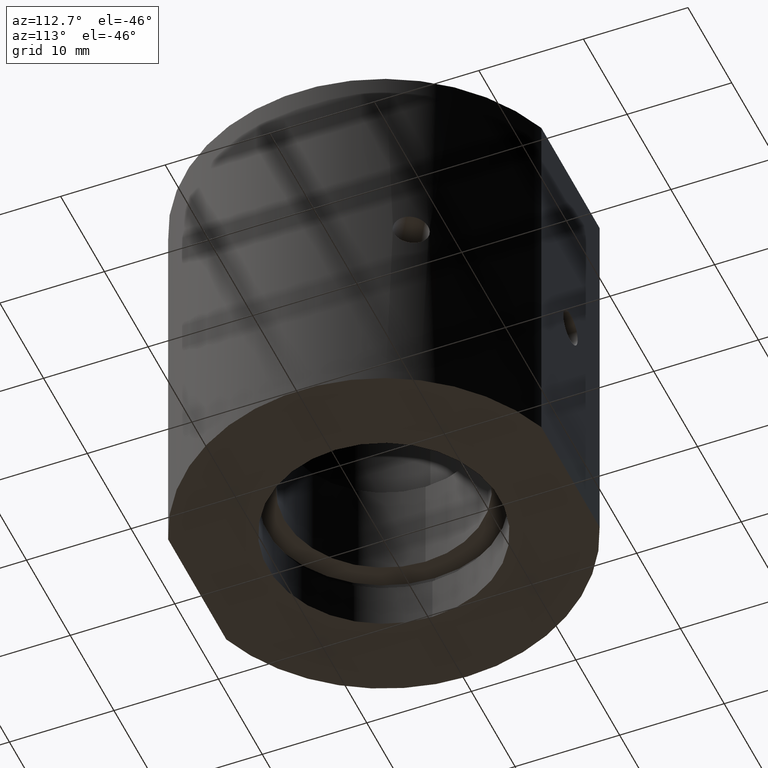
[diagram: clean part render]
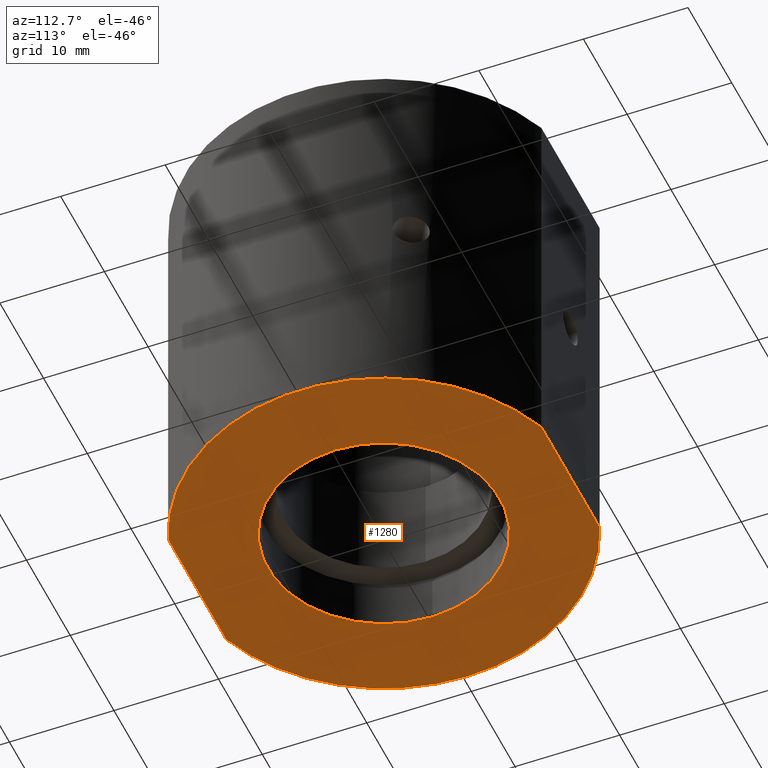
[diagram: same view with one face highlighted and labeled with its STEP entity id]
A machine part, auxiliary view. The second image highlights one B-rep face of the part: STEP entity #1280.
In plain terms, the highlighted planar face has unit normal (0, 0, 1).
Its self-contained STEP definition (entity closure, byte-faithful):
#18 = VERTEX_POINT ( 'NONE', #1069 ) ;
#46 = EDGE_CURVE ( 'NONE', #872, #330, #1139, .T. ) ;
#61 = DIRECTION ( 'NONE',  ( -1.224646799147350500E-016, -0.0000000000000000000, -1.000000000000000000 ) ) ;
#62 = AXIS2_PLACEMENT_3D ( 'NONE', #815, #1367, #250 ) ;
#73 = CIRCLE ( 'NONE', #1171, 11.10000000000000000 ) ;
#80 = ORIENTED_EDGE ( 'NONE', *, *, #1227, .T. ) ;
#95 = ORIENTED_EDGE ( 'NONE', *, *, #494, .T. ) ;
#96 = ORIENTED_EDGE ( 'NONE', *, *, #146, .T. ) ;
#102 = CARTESIAN_POINT ( 'NONE',  ( 1.584578833305349700E-015, 0.0000000000000000000, -19.00000000000000400 ) ) ;
#113 = CARTESIAN_POINT ( 'NONE',  ( 6.654321903845652000, -17.85000000000000100, -19.00000000000000400 ) ) ;
#133 = CARTESIAN_POINT ( 'NONE',  ( 11.10000000000000100, 1.359357947053562200E-015, -19.00000000000000400 ) ) ;
#146 = EDGE_CURVE ( 'NONE', #18, #872, #1018, .T. ) ;
#224 = DIRECTION ( 'NONE',  ( -1.000000000000000000, -0.0000000000000000000, 1.224646799147350500E-016 ) ) ;
#250 = DIRECTION ( 'NONE',  ( -1.000000000000000000, 0.0000000000000000000, 0.0000000000000000000 ) ) ;
#264 = PLANE ( 'NONE',  #1284 ) ;
#312 = FACE_OUTER_BOUND ( 'NONE', #603, .T. ) ;
#314 = ORIENTED_EDGE ( 'NONE', *, *, #730, .T. ) ;
#330 = VERTEX_POINT ( 'NONE', #1071 ) ;
#398 = CARTESIAN_POINT ( 'NONE',  ( 11.10000000000000100, 17.85000000000000100, -19.00000000000000400 ) ) ;
#423 = DIRECTION ( 'NONE',  ( -1.224646799147350500E-016, -0.0000000000000000000, -1.000000000000000000 ) ) ;
#427 = ORIENTED_EDGE ( 'NONE', *, *, #991, .F. ) ;
#454 = CARTESIAN_POINT ( 'NONE',  ( -6.654321903845648500, 17.85000000000000100, -19.00000000000000400 ) ) ;
#494 = EDGE_CURVE ( 'NONE', #1363, #1115, #1149, .T. ) ;
#497 = ORIENTED_EDGE ( 'NONE', *, *, #46, .T. ) ;
#514 = AXIS2_PLACEMENT_3D ( 'NONE', #1152, #714, #917 ) ;
#517 = EDGE_LOOP ( 'NONE', ( #871, #427 ) ) ;
#529 = VECTOR ( 'NONE', #224, 1000.000000000000000 ) ;
#567 = EDGE_CURVE ( 'NONE', #1097, #1192, #595, .T. ) ;
#584 = AXIS2_PLACEMENT_3D ( 'NONE', #1409, #846, #628 ) ;
#595 = CIRCLE ( 'NONE', #62, 11.10000000000000000 ) ;
#603 = EDGE_LOOP ( 'NONE', ( #80, #95, #314, #96, #497 ) ) ;
#628 = DIRECTION ( 'NONE',  ( -1.000000000000000000, 0.0000000000000000000, 1.821231995776175500E-016 ) ) ;
#714 = DIRECTION ( 'NONE',  ( -1.224646799147350500E-016, -0.0000000000000000000, -1.000000000000000000 ) ) ;
#719 = DIRECTION ( 'NONE',  ( 1.224646799147350500E-016, 0.0000000000000000000, 1.000000000000000000 ) ) ;
#730 = EDGE_CURVE ( 'NONE', #1115, #18, #1289, .T. ) ;
#815 = CARTESIAN_POINT ( 'NONE',  ( 1.584578833305349700E-015, 0.0000000000000000000, -19.00000000000000400 ) ) ;
#843 = DIRECTION ( 'NONE',  ( 1.000000000000000000, 0.0000000000000000000, -1.224646799147350500E-016 ) ) ;
#844 = CARTESIAN_POINT ( 'NONE',  ( 1.584578833305349700E-015, 0.0000000000000000000, -19.00000000000000400 ) ) ;
#846 = DIRECTION ( 'NONE',  ( -1.224646799147350500E-016, -0.0000000000000000000, -1.000000000000000000 ) ) ;
#871 = ORIENTED_EDGE ( 'NONE', *, *, #567, .F. ) ;
#872 = VERTEX_POINT ( 'NONE', #454 ) ;
#917 = DIRECTION ( 'NONE',  ( -1.000000000000000000, 0.0000000000000000000, 1.821231995776175500E-016 ) ) ;
#939 = DIRECTION ( 'NONE',  ( 1.000000000000000000, 0.0000000000000000000, -1.224646799147350500E-016 ) ) ;
#947 = DIRECTION ( 'NONE',  ( -1.000000000000000000, 0.0000000000000000000, 1.821231995776175500E-016 ) ) ;
#952 = VECTOR ( 'NONE', #843, 1000.000000000000000 ) ;
#962 = FACE_BOUND ( 'NONE', #517, .T. ) ;
#991 = EDGE_CURVE ( 'NONE', #1192, #1097, #73, .T. ) ;
#1018 = CIRCLE ( 'NONE', #1101, 19.05000000000000100 ) ;
#1053 = CARTESIAN_POINT ( 'NONE',  ( 11.10000000000000100, 0.0000000000000000000, -19.00000000000000400 ) ) ;
#1069 = CARTESIAN_POINT ( 'NONE',  ( -19.05000000000000100, 0.0000000000000000000, -19.00000000000000000 ) ) ;
#1071 = CARTESIAN_POINT ( 'NONE',  ( 6.654321903845659100, 17.84999999999999400, -19.00000000000000400 ) ) ;
#1097 = VERTEX_POINT ( 'NONE', #1394 ) ;
#1101 = AXIS2_PLACEMENT_3D ( 'NONE', #844, #61, #947 ) ;
#1115 = VERTEX_POINT ( 'NONE', #1381 ) ;
#1126 = CIRCLE ( 'NONE', #514, 19.05000000000000100 ) ;
#1139 = LINE ( 'NONE', #398, #952 ) ;
#1149 = LINE ( 'NONE', #1225, #529 ) ;
#1152 = CARTESIAN_POINT ( 'NONE',  ( 1.584578833305349700E-015, 0.0000000000000000000, -19.00000000000000400 ) ) ;
#1171 = AXIS2_PLACEMENT_3D ( 'NONE', #102, #423, #1200 ) ;
#1192 = VERTEX_POINT ( 'NONE', #133 ) ;
#1200 = DIRECTION ( 'NONE',  ( -1.000000000000000000, 0.0000000000000000000, 0.0000000000000000000 ) ) ;
#1225 = CARTESIAN_POINT ( 'NONE',  ( 11.10000000000000100, -17.85000000000000100, -19.00000000000000400 ) ) ;
#1227 = EDGE_CURVE ( 'NONE', #330, #1363, #1126, .T. ) ;
#1280 = ADVANCED_FACE ( 'NONE', ( #962, #312 ), #264, .F. ) ;
#1284 = AXIS2_PLACEMENT_3D ( 'NONE', #1053, #719, #939 ) ;
#1289 = CIRCLE ( 'NONE', #584, 19.05000000000000100 ) ;
#1363 = VERTEX_POINT ( 'NONE', #113 ) ;
#1367 = DIRECTION ( 'NONE',  ( -1.224646799147350500E-016, -0.0000000000000000000, -1.000000000000000000 ) ) ;
#1381 = CARTESIAN_POINT ( 'NONE',  ( -6.654321903845655600, -17.84999999999999400, -19.00000000000000400 ) ) ;
#1394 = CARTESIAN_POINT ( 'NONE',  ( -11.09999999999999800, 0.0000000000000000000, -19.00000000000000400 ) ) ;
#1409 = CARTESIAN_POINT ( 'NONE',  ( 1.584578833305349700E-015, 0.0000000000000000000, -19.00000000000000400 ) ) ;